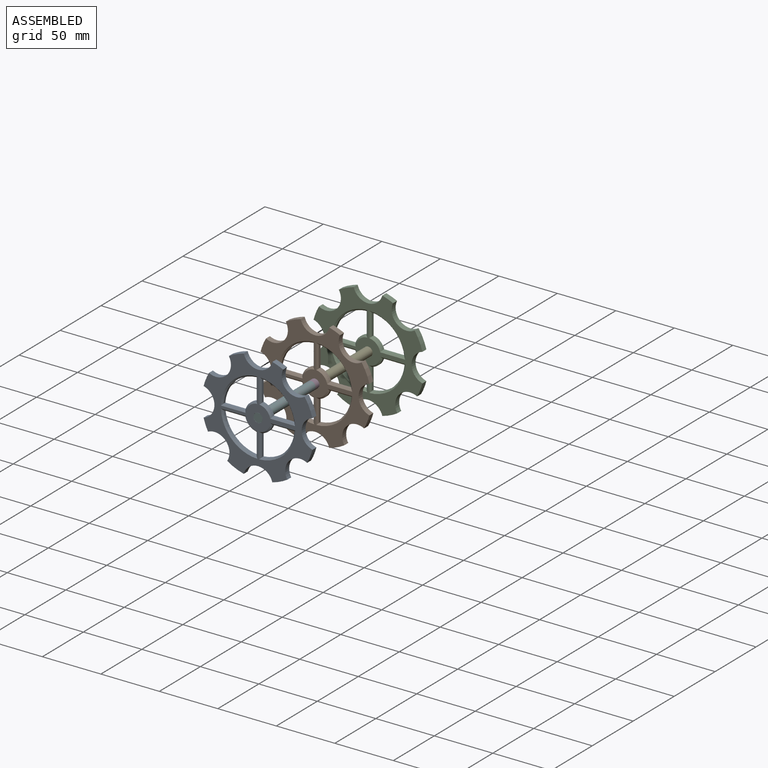
[diagram: assembled view]
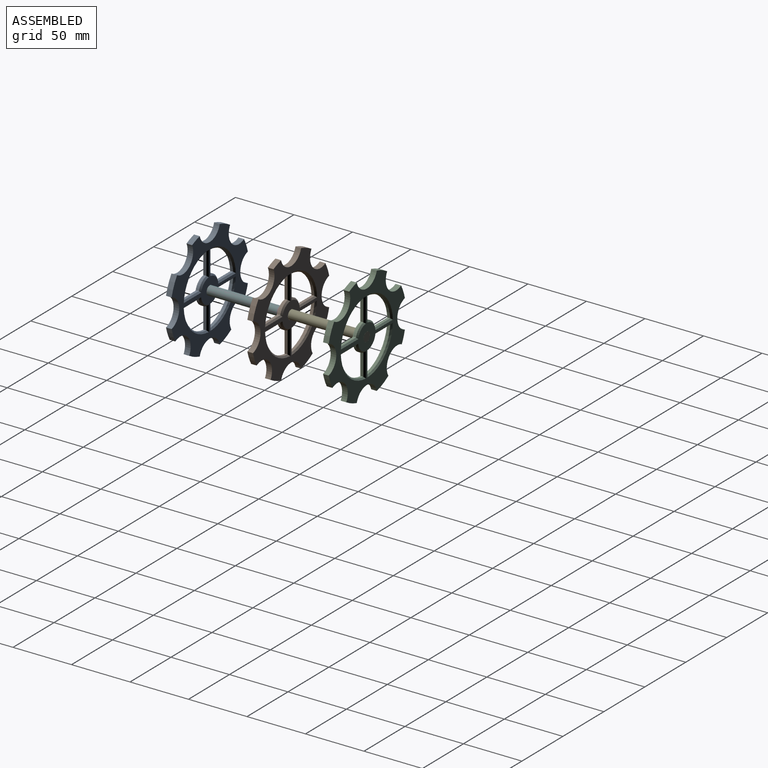
[diagram: assembled view, second angle]
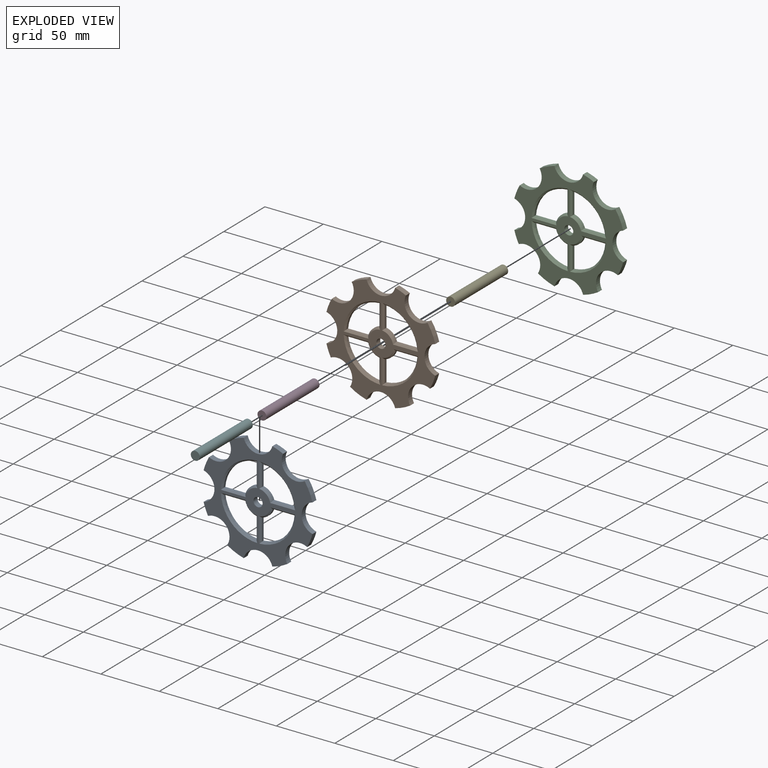
[diagram: exploded view]
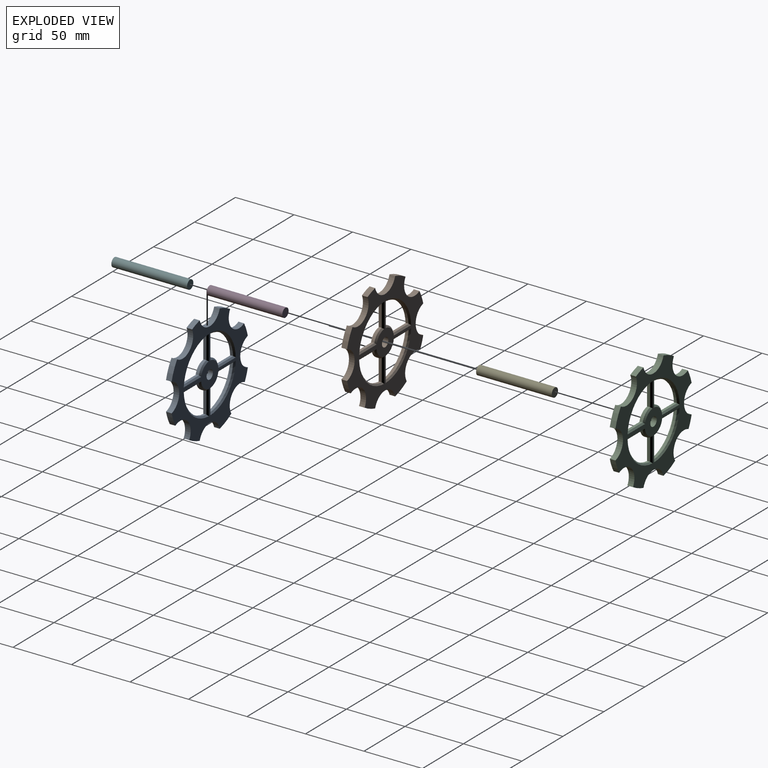
[diagram: exploded view, second angle]
ASSEMBLY  parts=6 mates=5
PART A: 67 faces, bbox 93x4.8x93 mm
  f0: plane 93.05x93.05mm, normal (0,-1,0), area 3064.5mm2, adj f2,f3,f4,f5,f6,f7,f8,f9
  f1: plane 93.05x93.05mm, normal (0,1,0), area 3064.5mm2, adj f2,f3,f4,f5,f6,f7,f8,f9
  f2: cylinder r=48.1mm len=14.71mm, axis (0,1,0), area 78.3mm2, adj f0,f1,f16,f17
  f3: cylinder r=48.1mm len=11.26mm, axis (0,1,0), area 58.7mm2, adj f0,f1,f15,f16
  f4: cylinder r=48.1mm len=12.79mm, axis (0,1,0), area 67.3mm2, adj f0,f1,f14,f15
  f5: cylinder r=48.1mm len=14.14mm, axis (0,1,0), area 75mm2, adj f0,f1,f13,f14
  f6: cylinder r=48.1mm len=9.85mm, axis (0,1,0), area 51mm2, adj f0,f1,f12,f13
  f7: cylinder r=48.1mm len=11.37mm, axis (0,1,0), area 59.4mm2, adj f0,f1,f11,f12
  f8: cylinder r=48.1mm len=12.68mm, axis (0,1,0), area 66.7mm2, adj f0,f1,f10,f11
  f9: cylinder r=48.1mm len=9.23mm, axis (0,1,0), area 47.7mm2, adj f0,f1,f10,f17
  f10: cylinder r=12.7mm len=24.45mm, axis (0,-1,0), area 158.9mm2, adj f0,f1,f8,f9
  f11: cylinder r=12.7mm len=19.09mm, axis (0,-1,0), area 158.9mm2, adj f0,f1,f7,f8
  f12: cylinder r=12.7mm len=24.45mm, axis (0,-1,0), area 158.9mm2, adj f0,f1,f6,f7
  f13: cylinder r=12.7mm len=19.48mm, axis (0,-1,0), area 158.9mm2, adj f0,f1,f5,f6
  f14: cylinder r=12.7mm len=24.45mm, axis (0,-1,0), area 158.9mm2, adj f0,f1,f4,f5
  f15: cylinder r=12.7mm len=19.12mm, axis (0,-1,0), area 158.9mm2, adj f0,f1,f3,f4
  f16: cylinder r=12.7mm len=24.45mm, axis (0,-1,0), area 158.9mm2, adj f0,f1,f2,f3
  f17: cylinder r=12.7mm len=19.63mm, axis (0,-1,0), area 158.9mm2, adj f0,f1,f2,f9
  f18: cylinder r=3.89mm len=7.78mm, axis (0,1,0), area 118mm2, adj f0,f1
  f19: cylinder r=11.93mm len=9.7mm, axis (0,1,0), area 32.8mm2, adj f20,f22,f41,f66
  f20: plane 18.72x2.29mm, normal (0,0,1), area 42.8mm2, adj f19,f21,f40,f65
  f21: cylinder r=30.5mm len=28.42mm, axis (0,1,0), area 99.6mm2, adj f20,f22,f42,f63
  f22: plane 18.68x2.29mm, normal (-1,0,0), area 42.7mm2, adj f19,f21,f43,f64
  f23: plane 18.89x2.29mm, normal (0,0,1), area 43.2mm2, adj f24,f26,f36,f60
  f24: cylinder r=11.93mm len=9.08mm, axis (0,1,0), area 29.5mm2, adj f23,f25,f37,f62
  f25: plane 18.72x2.29mm, normal (1,0,0), area 42.8mm2, adj f24,f26,f39,f61
  f26: cylinder r=30.5mm len=27.96mm, axis (0,1,0), area 96.3mm2, adj f23,f25,f38,f59
  f27: plane 18.72x2.29mm, normal (1,0,0), area 42.8mm2, adj f28,f30,f50,f52
  f28: cylinder r=11.93mm len=9.3mm, axis (0,1,0), area 31.4mm2, adj f27,f29,f49,f54
  f29: plane 18.75x2.29mm, normal (0,0,-1), area 42.9mm2, adj f28,f30,f48,f53
  f30: cylinder r=30.5mm len=28.04mm, axis (0,1,0), area 98.2mm2, adj f27,f29,f35,f51
  f31: plane 18.75x2.29mm, normal (0,0,-1), area 42.9mm2, adj f32,f34,f47,f56
  f32: cylinder r=11.93mm len=9.65mm, axis (0,1,0), area 32.3mm2, adj f31,f33,f46,f58
  f33: plane 18.68x2.29mm, normal (-1,0,0), area 42.7mm2, adj f32,f34,f44,f57
  f34: cylinder r=30.5mm len=28.4mm, axis (0,1,0), area 99mm2, adj f31,f33,f45,f55
  f35: cone r=31.77mm half-angle=45deg, axis (0,1,0), area 81.2mm2, adj f1,f30,f48,f50
  f36: plane 21.26x1.27mm, normal (0,0.71,0.71), area 36mm2, adj f1,f23,f37,f38
  f37: cone r=11.93mm half-angle=45deg, axis (0,-1,0), area 23.7mm2, adj f1,f24,f36,f39
  f38: cone r=31.77mm half-angle=45deg, axis (0,1,0), area 79.7mm2, adj f1,f26,f36,f39
  f39: plane 21.15x1.27mm, normal (0.71,0.71,0), area 35.8mm2, adj f1,f25,f37,f38
  f40: plane 21.15x1.27mm, normal (0,0.71,0.71), area 35.8mm2, adj f1,f20,f41,f42
  f41: cone r=11.93mm half-angle=45deg, axis (0,-1,0), area 26.3mm2, adj f1,f19,f40,f43
  f42: cone r=31.77mm half-angle=45deg, axis (0,1,0), area 82.3mm2, adj f1,f21,f40,f43
  f43: plane 21.13x1.27mm, normal (-0.71,0.71,0), area 35.7mm2, adj f1,f22,f41,f42
  f44: plane 21.13x1.27mm, normal (-0.71,0.71,0), area 35.7mm2, adj f1,f33,f45,f46
  f45: cone r=31.77mm half-angle=45deg, axis (0,1,0), area 81.9mm2, adj f1,f34,f44,f47
  f46: cone r=11.93mm half-angle=45deg, axis (0,-1,0), area 25.9mm2, adj f1,f32,f44,f47
  f47: plane 21.17x1.27mm, normal (0,0.71,-0.71), area 35.8mm2, adj f1,f31,f45,f46
  f48: plane 21.17x1.27mm, normal (0,0.71,-0.71), area 35.8mm2, adj f1,f29,f35,f49
  f49: cone r=11.93mm half-angle=45deg, axis (0,-1,0), area 25.2mm2, adj f1,f28,f48,f50
  f50: plane 21.15x1.27mm, normal (0.71,0.71,0), area 35.8mm2, adj f1,f27,f35,f49
  f51: cone r=30.5mm half-angle=45deg, axis (0,-1,0), area 81.2mm2, adj f0,f30,f52,f53
  f52: plane 21.15x1.27mm, normal (0.71,-0.71,0), area 35.8mm2, adj f0,f27,f51,f54
  f53: plane 21.17x1.27mm, normal (0,-0.71,-0.71), area 35.8mm2, adj f0,f29,f51,f54
  f54: cone r=10.66mm half-angle=45deg, axis (0,1,0), area 25.2mm2, adj f0,f28,f52,f53
  f55: cone r=30.5mm half-angle=45deg, axis (0,-1,0), area 81.9mm2, adj f0,f34,f56,f57
  f56: plane 21.17x1.27mm, normal (0,-0.71,-0.71), area 35.8mm2, adj f0,f31,f55,f58
  f57: plane 21.13x1.27mm, normal (-0.71,-0.71,0), area 35.7mm2, adj f0,f33,f55,f58
  f58: cone r=10.66mm half-angle=45deg, axis (0,1,0), area 25.9mm2, adj f0,f32,f56,f57
  f59: cone r=30.5mm half-angle=45deg, axis (0,-1,0), area 79.7mm2, adj f0,f26,f60,f61
  f60: plane 21.26x1.27mm, normal (0,-0.71,0.71), area 36mm2, adj f0,f23,f59,f62
  f61: plane 21.15x1.27mm, normal (0.71,-0.71,0), area 35.8mm2, adj f0,f25,f59,f62
  f62: cone r=10.66mm half-angle=45deg, axis (0,1,0), area 23.7mm2, adj f0,f24,f60,f61
  f63: cone r=30.5mm half-angle=45deg, axis (0,-1,0), area 82.3mm2, adj f0,f21,f64,f65
  f64: plane 21.13x1.27mm, normal (-0.71,-0.71,0), area 35.7mm2, adj f0,f22,f63,f66
  f65: plane 21.15x1.27mm, normal (0,-0.71,0.71), area 35.8mm2, adj f0,f20,f63,f66
  f66: cone r=10.66mm half-angle=45deg, axis (0,1,0), area 26.3mm2, adj f0,f19,f64,f65
PART B: same geometry as A
PART C: same geometry as A
PART D: 3 faces, bbox 7.7x64.7x7.7 mm
  f0: plane 7.67x7.67mm, normal (0,-1,0), area 46.2mm2, adj f1
  f1: cylinder r=3.84mm len=64.71mm, axis (0,-1,0), area 1559.5mm2, adj f0,f2
  f2: plane 7.67x7.67mm, normal (0,1,0), area 46.2mm2, adj f1
PART E: same geometry as D
PART F: same geometry as D
PLACE A rot(axis=(0,0,1),0deg) t=(-112.41,-35.58,-26.92)mm
PLACE B t=(-112.41,33.96,-26.92)mm
PLACE C t=(-112.41,98.67,-26.92)mm
PLACE D t=(-112.41,-37.18,-26.92)mm
PLACE E t=(-112.41,32.36,-26.92)mm
PLACE F rot(axis=(0,0,1),0deg) t=(-112.41,-42.01,-26.92)mm
MATE revolute E.f1 <-> C.f18  axis (0,1,0) through (-112.41,98.67,-26.92)mm
MATE revolute D.f1 <-> A.f18  axis (0,-1,0) through (-112.41,-35.58,-26.92)mm
MATE revolute B.f18 <-> D.f1  axis (0,-1,0) through (-112.41,29.13,-26.92)mm
MATE revolute B.f18 <-> E.f1  axis (0,1,0) through (-112.41,33.96,-26.92)mm
MATE revolute A.f18 <-> F.f1  axis (0,-1,0) through (-112.41,-40.41,-26.92)mm
